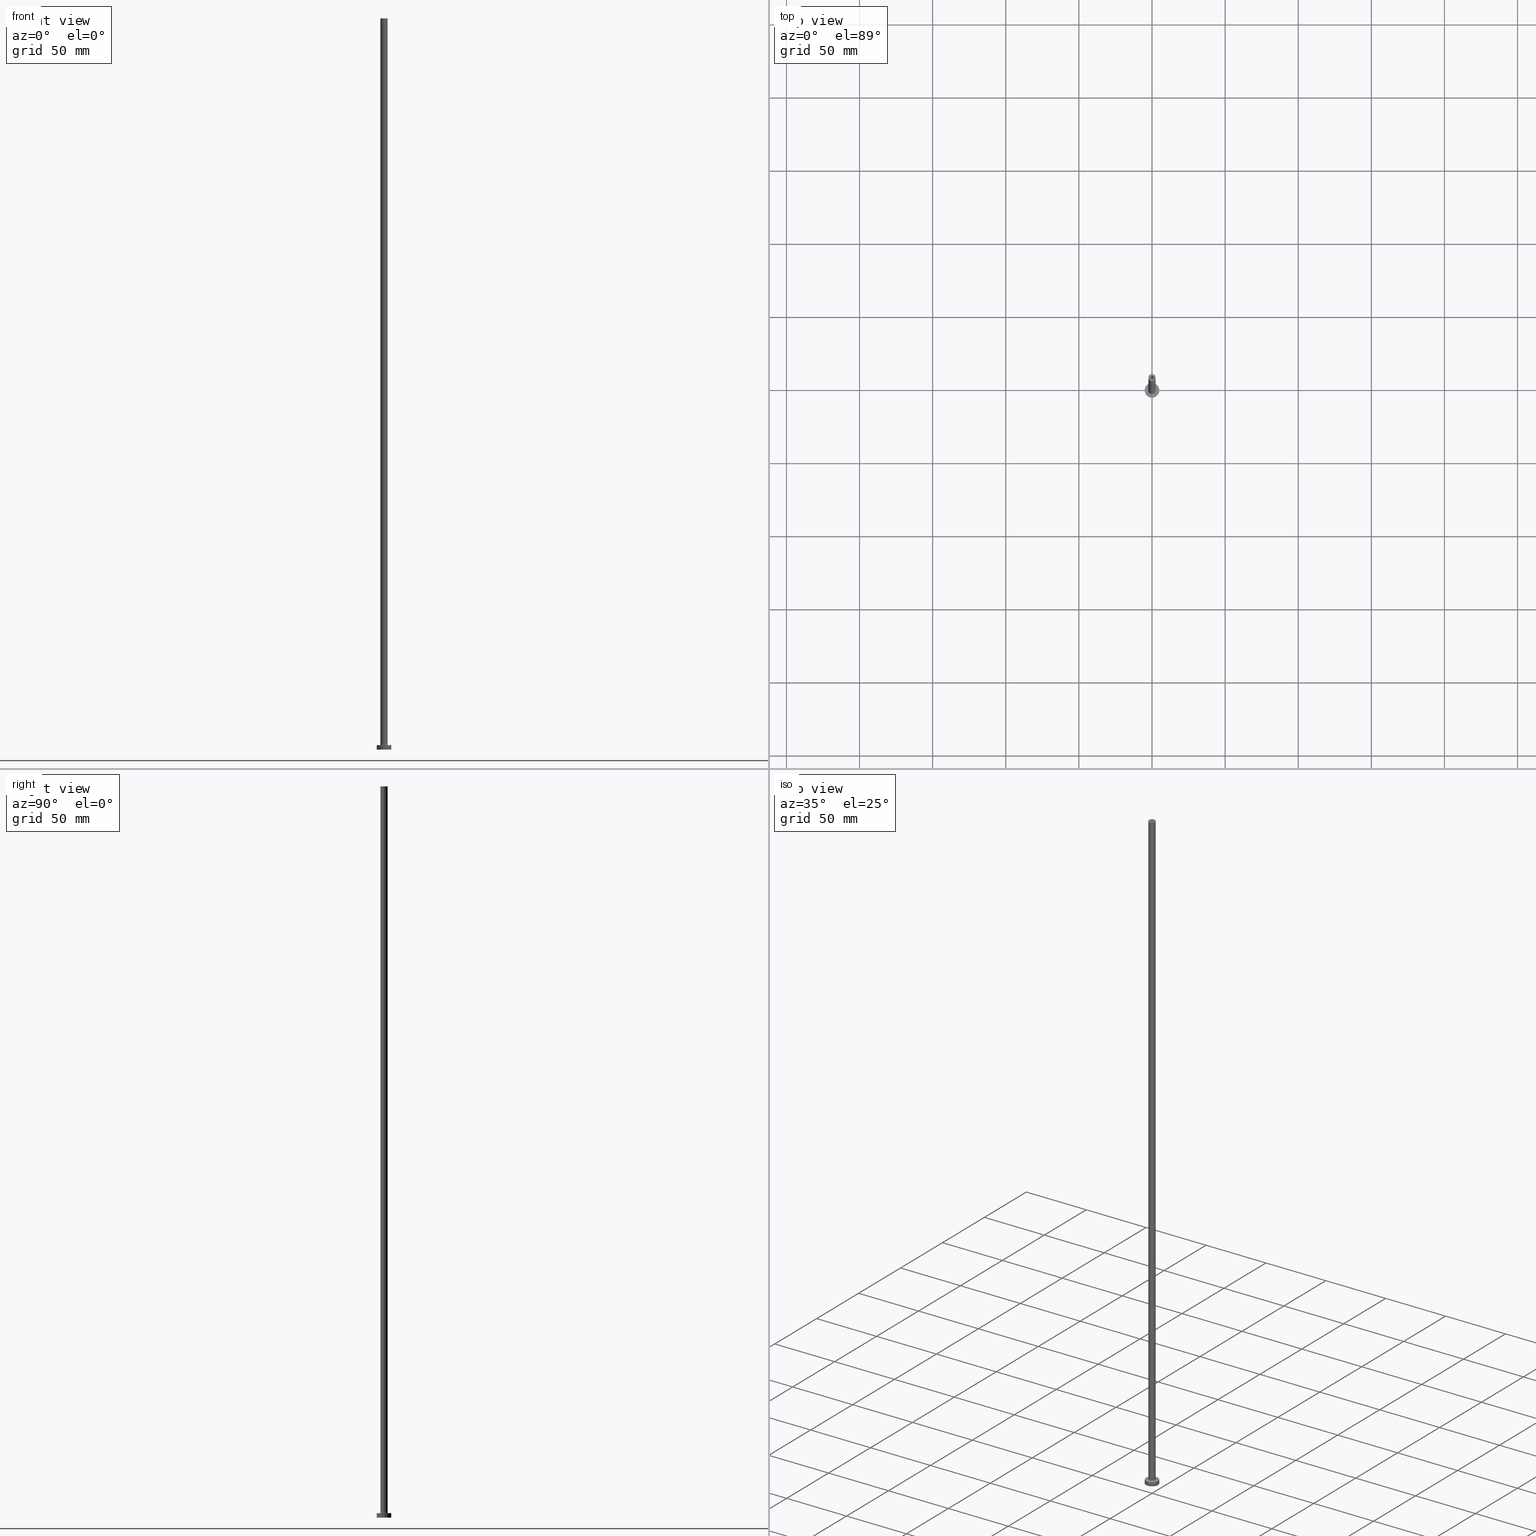
[diagram: canonical four-view strip — front | top / right | iso, engineering-drawing reading convention]
A machine part, canonical four-view strip (front | top / right | iso — engineering-drawing reading convention). The complete STEP part file that produces these views, byte-faithful:
ISO-10303-21;
HEADER;
FILE_DESCRIPTION (( 'STEP AP203' ),
    '1' );
FILE_NAME ('7f8e.STEP',
    '2023-02-13T18:03:27',
    ( '' ),
    ( '' ),
    'SwSTEP 2.0',
    'SolidWorks 2019',
    '' );
FILE_SCHEMA (( 'CONFIG_CONTROL_DESIGN' ));
ENDSEC;

DATA;
#1 = PLANE ( 'NONE',  #320 ) ;
#2 = ORIENTED_EDGE ( 'NONE', *, *, #223, .F. ) ;
#3 = DIRECTION ( 'NONE',  ( 0.000000000000000000, 0.000000000000000000, 1.000000000000000000 ) ) ;
#4 = DIRECTION ( 'NONE',  ( 1.000000000000000000, 0.000000000000000000, 0.000000000000000000 ) ) ;
#5 = CYLINDRICAL_SURFACE ( 'NONE', #167, 1.250000000000000000 ) ;
#6 = CIRCLE ( 'NONE', #34, 1.399999999999999911 ) ;
#7 = DIRECTION ( 'NONE',  ( 1.000000000000000000, 0.000000000000000000, 0.000000000000000000 ) ) ;
#8 = ORIENTED_EDGE ( 'NONE', *, *, #285, .T. ) ;
#9 = CARTESIAN_POINT ( 'NONE',  ( 0.000000000000000000, 0.000000000000000000, 0.000000000000000000 ) ) ;
#10 = EDGE_CURVE ( 'NONE', #125, #184, #11, .T. ) ;
#11 = LINE ( 'NONE', #166, #288 ) ;
#12 = DIRECTION ( 'NONE',  ( -0.000000000000000000, -0.000000000000000000, -1.000000000000000000 ) ) ;
#13 = AXIS2_PLACEMENT_3D ( 'NONE', #53, #59, #412 ) ;
#14 = DATE_AND_TIME ( #345, #290 ) ;
#15 = AXIS2_PLACEMENT_3D ( 'NONE', #322, #28, #256 ) ;
#16 = DIRECTION ( 'NONE',  ( 0.000000000000000000, 0.000000000000000000, -1.000000000000000000 ) ) ;
#17 = EDGE_CURVE ( 'NONE', #184, #90, #176, .T. ) ;
#18 = PERSON_AND_ORGANIZATION ( #262, #431 ) ;
#19 = PLANE ( 'NONE',  #137 ) ;
#20 = COORDINATED_UNIVERSAL_TIME_OFFSET ( 1, 0, .AHEAD. ) ;
#21 = DIRECTION ( 'NONE',  ( -1.000000000000000000, 1.224646799147353207E-16, 0.000000000000000000 ) ) ;
#22 = AXIS2_PLACEMENT_3D ( 'NONE', #298, #3, #430 ) ;
#23 = PERSON_AND_ORGANIZATION ( #262, #431 ) ;
#24 = CARTESIAN_POINT ( 'NONE',  ( -2.500000000000000000, 0.000000000000000000, 500.0000000000000000 ) ) ;
#25 = VECTOR ( 'NONE', #236, 1000.000000000000000 ) ;
#26 = DIRECTION ( 'NONE',  ( 1.000000000000000000, 0.000000000000000000, 0.000000000000000000 ) ) ;
#27 = APPROVAL ( #429, 'NEUR�EN�' ) ;
#28 = DIRECTION ( 'NONE',  ( -0.000000000000000000, -0.000000000000000000, -1.000000000000000000 ) ) ;
#29 = ORIENTED_EDGE ( 'NONE', *, *, #17, .T. ) ;
#30 = PRODUCT_RELATED_PRODUCT_CATEGORY ( 'detail', '', ( #413 ) ) ;
#31 = CIRCLE ( 'NONE', #94, 0.2999999999999999334 ) ;
#32 = DIRECTION ( 'NONE',  ( -0.000000000000000000, -0.000000000000000000, -1.000000000000000000 ) ) ;
#33 = ORIENTED_EDGE ( 'NONE', *, *, #333, .T. ) ;
#34 = AXIS2_PLACEMENT_3D ( 'NONE', #335, #297, #4 ) ;
#35 = ADVANCED_FACE ( 'NONE', ( #130 ), #235, .F. ) ;
#36 = FACE_OUTER_BOUND ( 'NONE', #148, .T. ) ;
#37 = VERTEX_POINT ( 'NONE', #231 ) ;
#38 = CARTESIAN_POINT ( 'NONE',  ( 2.500000000000000000, 3.061616997868382648E-16, 3.300000000000025135 ) ) ;
#39 = EDGE_LOOP ( 'NONE', ( #452, #421, #224, #204 ) ) ;
#40 = CIRCLE ( 'NONE', #102, 5.000000000000000000 ) ;
#41 = CALENDAR_DATE ( 2023, 13, 2 ) ;
#42 = DIRECTION ( 'NONE',  ( 1.000000000000000000, 0.000000000000000000, 0.000000000000000000 ) ) ;
#43 = AXIS2_PLACEMENT_3D ( 'NONE', #349, #180, #221 ) ;
#44 = APPROVAL_DATE_TIME ( #359, #239 ) ;
#45 = ORIENTED_EDGE ( 'NONE', *, *, #174, .F. ) ;
#46 = DIRECTION ( 'NONE',  ( 1.000000000000000000, 0.000000000000000000, -0.000000000000000000 ) ) ;
#47 = FACE_OUTER_BOUND ( 'NONE', #237, .T. ) ;
#48 = DIRECTION ( 'NONE',  ( -1.000000000000000000, 0.000000000000000000, 0.000000000000000000 ) ) ;
#49 = EDGE_CURVE ( 'NONE', #240, #37, #119, .T. ) ;
#50 = CC_DESIGN_APPROVAL ( #239, ( #230 ) ) ;
#51 = CARTESIAN_POINT ( 'NONE',  ( 0.000000000000000000, 0.000000000000000000, 464.9999999999999432 ) ) ;
#52 = CARTESIAN_POINT ( 'NONE',  ( 0.000000000000000000, 0.000000000000000000, 3.000000000000000000 ) ) ;
#53 = CARTESIAN_POINT ( 'NONE',  ( 0.000000000000000000, 0.000000000000000000, 500.0000000000000000 ) ) ;
#54 = DIRECTION ( 'NONE',  ( 1.000000000000000000, 0.000000000000000000, 0.000000000000000000 ) ) ;
#55 = CLOSED_SHELL ( 'NONE', ( #271, #294, #351, #92, #139, #363, #457, #249, #263, #191, #35, #212, #346, #86 ) ) ;
#56 = EDGE_CURVE ( 'NONE', #270, #327, #438, .T. ) ;
#57 = SHAPE_DEFINITION_REPRESENTATION ( #101, #182 ) ;
#58 = AXIS2_PLACEMENT_3D ( 'NONE', #451, #32, #414 ) ;
#59 = DIRECTION ( 'NONE',  ( -0.000000000000000000, -0.000000000000000000, -1.000000000000000000 ) ) ;
#60 = DIRECTION ( 'NONE',  ( 0.000000000000000000, 0.000000000000000000, 1.000000000000000000 ) ) ;
#61 = SECURITY_CLASSIFICATION_LEVEL ( 'unclassified' ) ;
#62 = DIRECTION ( 'NONE',  ( 1.000000000000000000, 0.000000000000000000, 0.000000000000000000 ) ) ;
#63 = CC_DESIGN_DATE_AND_TIME_ASSIGNMENT ( #195, #326, ( #230 ) ) ;
#64 = CARTESIAN_POINT ( 'NONE',  ( 2.500000000000000000, 3.061616997868382648E-16, 500.0000000000000000 ) ) ;
#65 = TOROIDAL_SURFACE ( 'NONE', #210, 2.799999999999999822, 0.2999999999999999889 ) ;
#66 = CC_DESIGN_SECURITY_CLASSIFICATION ( #216, ( #113 ) ) ;
#67 = CARTESIAN_POINT ( 'NONE',  ( -5.000000000000000000, 0.000000000000000000, 3.000000000000000000 ) ) ;
#68 = ORIENTED_EDGE ( 'NONE', *, *, #328, .T. ) ;
#69 = CARTESIAN_POINT ( 'NONE',  ( 1.399999999999999911, 1.714505518806294145E-16, 468.9597979746445731 ) ) ;
#70 = ORIENTED_EDGE ( 'NONE', *, *, #300, .F. ) ;
#71 = EDGE_CURVE ( 'NONE', #356, #281, #40, .T. ) ;
#72 = DIRECTION ( 'NONE',  ( 1.000000000000000000, 0.000000000000000000, -0.000000000000000000 ) ) ;
#73 = ORIENTED_EDGE ( 'NONE', *, *, #71, .F. ) ;
#74 = CIRCLE ( 'NONE', #248, 2.500000000000000000 ) ;
#75 = FACE_OUTER_BOUND ( 'NONE', #450, .T. ) ;
#76 = EDGE_LOOP ( 'NONE', ( #336, #315, #350, #302 ) ) ;
#77 = PERSON_AND_ORGANIZATION ( #262, #431 ) ;
#78 = EDGE_LOOP ( 'NONE', ( #419, #150 ) ) ;
#79 = CC_DESIGN_PERSON_AND_ORGANIZATION_ASSIGNMENT ( #343, #377, ( #113 ) ) ;
#80 = PERSON_AND_ORGANIZATION ( #262, #431 ) ;
#81 = ORIENTED_EDGE ( 'NONE', *, *, #396, .T. ) ;
#82 = VECTOR ( 'NONE', #108, 1000.000000000000000 ) ;
#83 = COORDINATED_UNIVERSAL_TIME_OFFSET ( 1, 0, .AHEAD. ) ;
#84 = ORIENTED_EDGE ( 'NONE', *, *, #390, .F. ) ;
#85 = CARTESIAN_POINT ( 'NONE',  ( 0.000000000000000000, 0.000000000000000000, 500.0000000000000000 ) ) ;
#86 = ADVANCED_FACE ( 'NONE', ( #47 ), #5, .F. ) ;
#87 = ORIENTED_EDGE ( 'NONE', *, *, #169, .F. ) ;
#88 = CIRCLE ( 'NONE', #162, 2.799999999999999822 ) ;
#89 = DATE_AND_TIME ( #134, #131 ) ;
#90 = VERTEX_POINT ( 'NONE', #201 ) ;
#91 = DIRECTION ( 'NONE',  ( -0.000000000000000000, -0.000000000000000000, -1.000000000000000000 ) ) ;
#92 = ADVANCED_FACE ( 'NONE', ( #411 ), #211, .T. ) ;
#93 = DIRECTION ( 'NONE',  ( 0.000000000000000000, 0.000000000000000000, 1.000000000000000000 ) ) ;
#94 = AXIS2_PLACEMENT_3D ( 'NONE', #274, #308, #21 ) ;
#95 = AXIS2_PLACEMENT_3D ( 'NONE', #379, #286, #111 ) ;
#96 = CARTESIAN_POINT ( 'NONE',  ( 5.000000000000000000, 6.123233995736766282E-16, 3.000000000000000000 ) ) ;
#97 = PERSON_AND_ORGANIZATION_ROLE ( 'design_supplier' ) ;
#98 = DIRECTION ( 'NONE',  ( 1.000000000000000000, 0.000000000000000000, 0.000000000000000000 ) ) ;
#99 = EDGE_CURVE ( 'NONE', #389, #106, #227, .T. ) ;
#100 = CARTESIAN_POINT ( 'NONE',  ( -1.399999999999999911, 0.000000000000000000, 0.000000000000000000 ) ) ;
#101 = PRODUCT_DEFINITION_SHAPE ( 'NONE', 'NONE',  #230 ) ;
#102 = AXIS2_PLACEMENT_3D ( 'NONE', #52, #158, #362 ) ;
#103 = AXIS2_PLACEMENT_3D ( 'NONE', #135, #136, #408 ) ;
#104 = CARTESIAN_POINT ( 'NONE',  ( 0.000000000000000000, 0.000000000000000000, 3.000000000000000000 ) ) ;
#105 = VECTOR ( 'NONE', #382, 1000.000000000000000 ) ;
#106 = VERTEX_POINT ( 'NONE', #344 ) ;
#107 = EDGE_CURVE ( 'NONE', #146, #222, #31, .T. ) ;
#108 = DIRECTION ( 'NONE',  ( -0.000000000000000000, -0.000000000000000000, -1.000000000000000000 ) ) ;
#109 = ORIENTED_EDGE ( 'NONE', *, *, #133, .F. ) ;
#110 = LINE ( 'NONE', #218, #82 ) ;
#111 = DIRECTION ( 'NONE',  ( -1.000000000000000000, 0.000000000000000000, 0.000000000000000000 ) ) ;
#112 = AXIS2_PLACEMENT_3D ( 'NONE', #140, #60, #98 ) ;
#113 = PRODUCT_DEFINITION_FORMATION_WITH_SPECIFIED_SOURCE ( 'LIBOVOLN�', '', #413, .NOT_KNOWN. ) ;
#114 = AXIS2_PLACEMENT_3D ( 'NONE', #458, #348, #149 ) ;
#115 = ORIENTED_EDGE ( 'NONE', *, *, #159, .T. ) ;
#116 = EDGE_CURVE ( 'NONE', #161, #146, #372, .T. ) ;
#117 = APPLICATION_CONTEXT ( 'configuration controlled 3d designs of mechanical parts and assemblies' ) ;
#118 = CARTESIAN_POINT ( 'NONE',  ( 0.000000000000000000, 0.000000000000000000, 0.000000000000000000 ) ) ;
#119 = CIRCLE ( 'NONE', #373, 1.250000000000000000 ) ;
#120 = CARTESIAN_POINT ( 'NONE',  ( 0.000000000000000000, 0.000000000000000000, 0.000000000000000000 ) ) ;
#121 = ORIENTED_EDGE ( 'NONE', *, *, #206, .T. ) ;
#122 = UNCERTAINTY_MEASURE_WITH_UNIT (LENGTH_MEASURE( 1.000000000000000082E-05 ), #267, 'distance_accuracy_value', 'NONE');
#123 = APPROVAL_PERSON_ORGANIZATION ( #77, #239, #399 ) ;
#124 = FACE_BOUND ( 'NONE', #318, .T. ) ;
#125 = VERTEX_POINT ( 'NONE', #312 ) ;
#126 = APPLICATION_PROTOCOL_DEFINITION ( 'international standard', 'config_control_design', 1994, #117 ) ;
#127 = VERTEX_POINT ( 'NONE', #303 ) ;
#128 = CC_DESIGN_DATE_AND_TIME_ASSIGNMENT ( #173, #401, ( #216 ) ) ;
#129 = APPROVAL_DATE_TIME ( #89, #27 ) ;
#130 = FACE_OUTER_BOUND ( 'NONE', #39, .T. ) ;
#131 = LOCAL_TIME ( 19, 3, 27.00000000000000000, #341 ) ;
#132 = CYLINDRICAL_SURFACE ( 'NONE', #440, 1.399999999999999911 ) ;
#133 = EDGE_CURVE ( 'NONE', #37, #240, #229, .T. ) ;
#134 = CALENDAR_DATE ( 2023, 13, 2 ) ;
#135 = CARTESIAN_POINT ( 'NONE',  ( 0.000000000000000000, 0.000000000000000000, 464.9999999999999432 ) ) ;
#136 = DIRECTION ( 'NONE',  ( 0.000000000000000000, 0.000000000000000000, 1.000000000000000000 ) ) ;
#137 = AXIS2_PLACEMENT_3D ( 'NONE', #352, #250, #72 ) ;
#138 = CARTESIAN_POINT ( 'NONE',  ( 0.000000000000000000, 0.000000000000000000, 0.000000000000000000 ) ) ;
#139 = ADVANCED_FACE ( 'NONE', ( #207 ), #241, .T. ) ;
#140 = CARTESIAN_POINT ( 'NONE',  ( 0.000000000000000000, 0.000000000000000000, 500.0000000000000000 ) ) ;
#141 = DIRECTION ( 'NONE',  ( 0.000000000000000000, 0.000000000000000000, -1.000000000000000000 ) ) ;
#142 = ORIENTED_EDGE ( 'NONE', *, *, #371, .F. ) ;
#143 = APPLICATION_CONTEXT ( 'configuration controlled 3d designs of mechanical parts and assemblies' ) ;
#144 = DIRECTION ( 'NONE',  ( 0.000000000000000000, 0.000000000000000000, 1.000000000000000000 ) ) ;
#145 = AXIS2_PLACEMENT_3D ( 'NONE', #183, #321, #141 ) ;
#146 = VERTEX_POINT ( 'NONE', #445 ) ;
#147 = FACE_OUTER_BOUND ( 'NONE', #289, .T. ) ;
#148 = EDGE_LOOP ( 'NONE', ( #284, #251, #461, #459 ) ) ;
#149 = DIRECTION ( 'NONE',  ( 1.000000000000000000, 0.000000000000000000, -0.000000000000000000 ) ) ;
#150 = ORIENTED_EDGE ( 'NONE', *, *, #444, .F. ) ;
#151 = DIRECTION ( 'NONE',  ( 0.000000000000000000, 0.000000000000000000, 1.000000000000000000 ) ) ;
#152 = EDGE_LOOP ( 'NONE', ( #383, #109 ) ) ;
#153 = VECTOR ( 'NONE', #420, 1000.000000000000000 ) ;
#154 = CC_DESIGN_PERSON_AND_ORGANIZATION_ASSIGNMENT ( #157, #329, ( #230 ) ) ;
#155 = CARTESIAN_POINT ( 'NONE',  ( 1.250000000000000000, 1.530808498934191571E-16, 500.0000000000000000 ) ) ;
#156 = DIRECTION ( 'NONE',  ( 0.000000000000000000, 0.000000000000000000, -1.000000000000000000 ) ) ;
#157 = PERSON_AND_ORGANIZATION ( #262, #431 ) ;
#158 = DIRECTION ( 'NONE',  ( 0.000000000000000000, 0.000000000000000000, 1.000000000000000000 ) ) ;
#159 = EDGE_CURVE ( 'NONE', #106, #389, #196, .T. ) ;
#160 = CARTESIAN_POINT ( 'NONE',  ( 0.000000000000000000, 0.000000000000000000, 3.000000000000000000 ) ) ;
#161 = VERTEX_POINT ( 'NONE', #24 ) ;
#162 = AXIS2_PLACEMENT_3D ( 'NONE', #337, #91, #448 ) ;
#163 = DIRECTION ( 'NONE',  ( 0.000000000000000000, 0.000000000000000000, 1.000000000000000000 ) ) ;
#164 = ORIENTED_EDGE ( 'NONE', *, *, #396, .F. ) ;
#165 = DIRECTION ( 'NONE',  ( 0.000000000000000000, 0.000000000000000000, 1.000000000000000000 ) ) ;
#166 = CARTESIAN_POINT ( 'NONE',  ( -1.399999999999999911, 0.000000000000000000, 468.9597979746445731 ) ) ;
#167 = AXIS2_PLACEMENT_3D ( 'NONE', #234, #365, #48 ) ;
#168 = FACE_OUTER_BOUND ( 'NONE', #292, .T. ) ;
#169 = EDGE_CURVE ( 'NONE', #327, #270, #439, .T. ) ;
#170 = CIRCLE ( 'NONE', #202, 1.399999999999999911 ) ;
#171 = DIRECTION ( 'NONE',  ( -1.000000000000000000, 0.000000000000000000, 0.000000000000000000 ) ) ;
#172 = APPROVAL_ROLE ( '' ) ;
#173 = DATE_AND_TIME ( #205, #425 ) ;
#174 = EDGE_CURVE ( 'NONE', #356, #389, #370, .T. ) ;
#175 = CARTESIAN_POINT ( 'NONE',  ( 0.000000000000000000, 0.000000000000000000, 0.000000000000000000 ) ) ;
#176 = CIRCLE ( 'NONE', #316, 1.399999999999999911 ) ;
#177 = AXIS2_PLACEMENT_3D ( 'NONE', #175, #405, #446 ) ;
#178 = CC_DESIGN_APPROVAL ( #27, ( #113 ) ) ;
#179 = DIRECTION ( 'NONE',  ( 1.000000000000000000, 0.000000000000000000, -0.000000000000000000 ) ) ;
#180 = DIRECTION ( 'NONE',  ( 0.000000000000000000, 0.000000000000000000, -1.000000000000000000 ) ) ;
#181 = ORIENTED_EDGE ( 'NONE', *, *, #17, .F. ) ;
#182 = ADVANCED_BREP_SHAPE_REPRESENTATION ( '7f8e', ( #380, #447 ), #410 ) ;
#183 = CARTESIAN_POINT ( 'NONE',  ( 2.799999999999999822, 0.000000000000000000, 3.300000000000025135 ) ) ;
#184 = VERTEX_POINT ( 'NONE', #100 ) ;
#185 = EDGE_CURVE ( 'NONE', #272, #146, #198, .T. ) ;
#186 = CYLINDRICAL_SURFACE ( 'NONE', #43, 1.399999999999999911 ) ;
#187 = AXIS2_PLACEMENT_3D ( 'NONE', #441, #378, #62 ) ;
#188 = VERTEX_POINT ( 'NONE', #245 ) ;
#189 = LINE ( 'NONE', #455, #105 ) ;
#190 = ORIENTED_EDGE ( 'NONE', *, *, #409, .F. ) ;
#191 = ADVANCED_FACE ( 'NONE', ( #209, #215 ), #347, .T. ) ;
#192 = FACE_BOUND ( 'NONE', #456, .T. ) ;
#193 = ORIENTED_EDGE ( 'NONE', *, *, #371, .T. ) ;
#194 = AXIS2_PLACEMENT_3D ( 'NONE', #265, #433, #197 ) ;
#195 = DATE_AND_TIME ( #41, #310 ) ;
#196 = CIRCLE ( 'NONE', #177, 5.000000000000000000 ) ;
#197 = DIRECTION ( 'NONE',  ( 1.000000000000000000, 0.000000000000000000, 0.000000000000000000 ) ) ;
#198 = CIRCLE ( 'NONE', #187, 2.500000000000000000 ) ;
#199 = DIRECTION ( 'NONE',  ( 0.000000000000000000, 0.000000000000000000, 1.000000000000000000 ) ) ;
#200 = EDGE_LOOP ( 'NONE', ( #164, #33, #323, #293 ) ) ;
#201 = CARTESIAN_POINT ( 'NONE',  ( 1.399999999999999911, 1.714505518806294145E-16, 0.000000000000000000 ) ) ;
#202 = AXIS2_PLACEMENT_3D ( 'NONE', #120, #432, #203 ) ;
#203 = DIRECTION ( 'NONE',  ( 1.000000000000000000, 0.000000000000000000, 0.000000000000000000 ) ) ;
#204 = ORIENTED_EDGE ( 'NONE', *, *, #206, .F. ) ;
#205 = CALENDAR_DATE ( 2023, 13, 2 ) ;
#206 = EDGE_CURVE ( 'NONE', #222, #188, #88, .T. ) ;
#207 = FACE_OUTER_BOUND ( 'NONE', #258, .T. ) ;
#208 = APPROVAL_STATUS ( 'not_yet_approved' ) ;
#209 = FACE_BOUND ( 'NONE', #152, .T. ) ;
#210 = AXIS2_PLACEMENT_3D ( 'NONE', #280, #317, #26 ) ;
#211 = CYLINDRICAL_SURFACE ( 'NONE', #13, 2.500000000000000000 ) ;
#212 = ADVANCED_FACE ( 'NONE', ( #168 ), #132, .F. ) ;
#213 = DIRECTION ( 'NONE',  ( 0.000000000000000000, 0.000000000000000000, 1.000000000000000000 ) ) ;
#214 = PERSON_AND_ORGANIZATION_ROLE ( 'classification_officer' ) ;
#215 = FACE_OUTER_BOUND ( 'NONE', #360, .T. ) ;
#216 = SECURITY_CLASSIFICATION ( '', '', #61 ) ;
#217 = FACE_OUTER_BOUND ( 'NONE', #78, .T. ) ;
#218 = CARTESIAN_POINT ( 'NONE',  ( -5.000000000000000000, 0.000000000000000000, 3.000000000000000000 ) ) ;
#219 = DIRECTION ( 'NONE',  ( 0.000000000000000000, 0.000000000000000000, -1.000000000000000000 ) ) ;
#220 = ORIENTED_EDGE ( 'NONE', *, *, #99, .T. ) ;
#221 = DIRECTION ( 'NONE',  ( -1.000000000000000000, 0.000000000000000000, 0.000000000000000000 ) ) ;
#222 = VERTEX_POINT ( 'NONE', #276 ) ;
#223 = EDGE_CURVE ( 'NONE', #161, #392, #282, .T. ) ;
#224 = ORIENTED_EDGE ( 'NONE', *, *, #300, .T. ) ;
#225 = APPROVAL_STATUS ( 'not_yet_approved' ) ;
#226 = ORIENTED_EDGE ( 'NONE', *, *, #285, .F. ) ;
#227 = CIRCLE ( 'NONE', #242, 5.000000000000000000 ) ;
#228 = PERSON_AND_ORGANIZATION_ROLE ( 'design_owner' ) ;
#229 = CIRCLE ( 'NONE', #112, 1.250000000000000000 ) ;
#230 = PRODUCT_DEFINITION ( 'NEZN�M�', '', #113, #406 ) ;
#231 = CARTESIAN_POINT ( 'NONE',  ( 1.250000000000000000, 1.530808498934191571E-16, 500.0000000000000000 ) ) ;
#232 = DIRECTION ( 'NONE',  ( 1.000000000000000000, 0.000000000000000000, 0.000000000000000000 ) ) ;
#233 =( NAMED_UNIT ( * ) SI_UNIT ( $, .STERADIAN. ) SOLID_ANGLE_UNIT ( ) );
#234 = CARTESIAN_POINT ( 'NONE',  ( 0.000000000000000000, 0.000000000000000000, 500.0000000000000000 ) ) ;
#235 = TOROIDAL_SURFACE ( 'NONE', #194, 2.799999999999999822, 0.2999999999999999889 ) ;
#236 = DIRECTION ( 'NONE',  ( 0.000000000000000000, 0.000000000000000000, -1.000000000000000000 ) ) ;
#237 = EDGE_LOOP ( 'NONE', ( #261, #400, #435, #87 ) ) ;
#238 = APPROVAL_PERSON_ORGANIZATION ( #23, #454, #275 ) ;
#239 = APPROVAL ( #225, 'NEUR�EN�' ) ;
#240 = VERTEX_POINT ( 'NONE', #307 ) ;
#241 = CYLINDRICAL_SURFACE ( 'NONE', #366, 5.000000000000000000 ) ;
#242 = AXIS2_PLACEMENT_3D ( 'NONE', #138, #376, #54 ) ;
#243 = DIRECTION ( 'NONE',  ( 1.000000000000000000, 0.000000000000000000, 0.000000000000000000 ) ) ;
#244 = AXIS2_PLACEMENT_3D ( 'NONE', #279, #213, #179 ) ;
#245 = CARTESIAN_POINT ( 'NONE',  ( 2.799999999999999822, 0.000000000000000000, 3.000000000000012434 ) ) ;
#246 = DIRECTION ( 'NONE',  ( -1.000000000000000000, 0.000000000000000000, 0.000000000000000000 ) ) ;
#247 = CARTESIAN_POINT ( 'NONE',  ( -1.250000000000000000, 0.000000000000000000, 464.9999999999999432 ) ) ;
#248 = AXIS2_PLACEMENT_3D ( 'NONE', #367, #364, #427 ) ;
#249 = ADVANCED_FACE ( 'NONE', ( #374, #342 ), #19, .F. ) ;
#250 = DIRECTION ( 'NONE',  ( 0.000000000000000000, 0.000000000000000000, 1.000000000000000000 ) ) ;
#251 = ORIENTED_EDGE ( 'NONE', *, *, #417, .T. ) ;
#252 = CARTESIAN_POINT ( 'NONE',  ( 5.000000000000000000, 6.123233995736766282E-16, 0.000000000000000000 ) ) ;
#253 = ORIENTED_EDGE ( 'NONE', *, *, #99, .F. ) ;
#254 = CARTESIAN_POINT ( 'NONE',  ( 0.000000000000000000, 0.000000000000000000, 500.0000000000000000 ) ) ;
#255 = EDGE_CURVE ( 'NONE', #240, #270, #189, .T. ) ;
#256 = DIRECTION ( 'NONE',  ( 1.000000000000000000, 0.000000000000000000, 0.000000000000000000 ) ) ;
#257 = AXIS2_PLACEMENT_3D ( 'NONE', #104, #144, #418 ) ;
#258 = EDGE_LOOP ( 'NONE', ( #73, #330, #220, #226 ) ) ;
#259 = DIRECTION ( 'NONE',  ( 1.000000000000000000, 0.000000000000000000, 0.000000000000000000 ) ) ;
#260 = ORIENTED_EDGE ( 'NONE', *, *, #56, .T. ) ;
#261 = ORIENTED_EDGE ( 'NONE', *, *, #417, .F. ) ;
#262 = PERSON ( 'NEUR�EN�', 'NEUR�EN�', 'NEUR�EN�', ('NEUR�EN�'), ('NEUR�EN�'), ('NEUR�EN�') ) ;
#263 = ADVANCED_FACE ( 'NONE', ( #147 ), #324, .T. ) ;
#264 = LINE ( 'NONE', #155, #25 ) ;
#265 = CARTESIAN_POINT ( 'NONE',  ( 0.000000000000000000, 0.000000000000000000, 3.300000000000025135 ) ) ;
#266 = AXIS2_PLACEMENT_3D ( 'NONE', #51, #163, #7 ) ;
#267 =( LENGTH_UNIT ( ) NAMED_UNIT ( * ) SI_UNIT ( .MILLI., .METRE. ) );
#268 = ORIENTED_EDGE ( 'NONE', *, *, #340, .T. ) ;
#269 = APPLICATION_PROTOCOL_DEFINITION ( 'international standard', 'config_control_design', 1994, #143 ) ;
#270 = VERTEX_POINT ( 'NONE', #247 ) ;
#271 = ADVANCED_FACE ( 'NONE', ( #36 ), #460, .F. ) ;
#272 = VERTEX_POINT ( 'NONE', #38 ) ;
#273 = CIRCLE ( 'NONE', #402, 2.500000000000000000 ) ;
#274 = CARTESIAN_POINT ( 'NONE',  ( -2.799999999999999822, 3.429011037612588783E-16, 3.300000000000025135 ) ) ;
#275 = APPROVAL_ROLE ( '' ) ;
#276 = CARTESIAN_POINT ( 'NONE',  ( -2.799999999999999822, 3.429011037612589276E-16, 3.000000000000012434 ) ) ;
#277 = DIRECTION ( 'NONE',  ( -0.000000000000000000, -0.000000000000000000, -1.000000000000000000 ) ) ;
#278 = DIRECTION ( 'NONE',  ( -0.000000000000000000, -0.000000000000000000, -1.000000000000000000 ) ) ;
#279 = CARTESIAN_POINT ( 'NONE',  ( 0.000000000000000000, 0.000000000000000000, 500.0000000000000000 ) ) ;
#280 = CARTESIAN_POINT ( 'NONE',  ( 0.000000000000000000, 0.000000000000000000, 3.300000000000025135 ) ) ;
#281 = VERTEX_POINT ( 'NONE', #67 ) ;
#282 = CIRCLE ( 'NONE', #304, 2.500000000000000000 ) ;
#283 = CARTESIAN_POINT ( 'NONE',  ( 1.250000000000000000, 1.530808498934191571E-16, 464.9999999999999432 ) ) ;
#284 = ORIENTED_EDGE ( 'NONE', *, *, #49, .T. ) ;
#285 = EDGE_CURVE ( 'NONE', #281, #106, #110, .T. ) ;
#286 = DIRECTION ( 'NONE',  ( -0.000000000000000000, -0.000000000000000000, -1.000000000000000000 ) ) ;
#287 = DIRECTION ( 'NONE',  ( 0.000000000000000000, 0.000000000000000000, -1.000000000000000000 ) ) ;
#288 = VECTOR ( 'NONE', #156, 1000.000000000000000 ) ;
#289 = EDGE_LOOP ( 'NONE', ( #393, #2, #334, #68 ) ) ;
#290 = LOCAL_TIME ( 19, 3, 27.00000000000000000, #306 ) ;
#291 = LINE ( 'NONE', #64, #153 ) ;
#292 = EDGE_LOOP ( 'NONE', ( #84, #386, #296, #29 ) ) ;
#293 = ORIENTED_EDGE ( 'NONE', *, *, #116, .F. ) ;
#294 = ADVANCED_FACE ( 'NONE', ( #385 ), #186, .F. ) ;
#295 = PERSON_AND_ORGANIZATION ( #262, #431 ) ;
#296 = ORIENTED_EDGE ( 'NONE', *, *, #10, .T. ) ;
#297 = DIRECTION ( 'NONE',  ( 0.000000000000000000, 0.000000000000000000, 1.000000000000000000 ) ) ;
#298 = CARTESIAN_POINT ( 'NONE',  ( 0.000000000000000000, 0.000000000000000000, 464.9999999999999432 ) ) ;
#299 = LOCAL_TIME ( 19, 3, 27.00000000000000000, #83 ) ;
#300 = EDGE_CURVE ( 'NONE', #272, #188, #339, .T. ) ;
#301 = ORIENTED_EDGE ( 'NONE', *, *, #340, .F. ) ;
#302 = ORIENTED_EDGE ( 'NONE', *, *, #10, .F. ) ;
#303 = CARTESIAN_POINT ( 'NONE',  ( 1.399999999999999911, 1.714505518806294145E-16, 464.9999999999999432 ) ) ;
#304 = AXIS2_PLACEMENT_3D ( 'NONE', #407, #93, #243 ) ;
#305 = CARTESIAN_POINT ( 'NONE',  ( -2.500000000000000000, 0.000000000000000000, 500.0000000000000000 ) ) ;
#306 = COORDINATED_UNIVERSAL_TIME_OFFSET ( 1, 0, .AHEAD. ) ;
#307 = CARTESIAN_POINT ( 'NONE',  ( -1.250000000000000000, 0.000000000000000000, 500.0000000000000000 ) ) ;
#308 = DIRECTION ( 'NONE',  ( 1.224646799147353207E-16, 1.000000000000000000, -0.000000000000000000 ) ) ;
#309 = VECTOR ( 'NONE', #277, 1000.000000000000000 ) ;
#310 = LOCAL_TIME ( 19, 3, 27.00000000000000000, #357 ) ;
#311 = CIRCLE ( 'NONE', #266, 1.399999999999999911 ) ;
#312 = CARTESIAN_POINT ( 'NONE',  ( -1.399999999999999911, 0.000000000000000000, 464.9999999999999432 ) ) ;
#313 = CC_DESIGN_PERSON_AND_ORGANIZATION_ASSIGNMENT ( #80, #228, ( #413 ) ) ;
#314 = FACE_OUTER_BOUND ( 'NONE', #325, .T. ) ;
#315 = ORIENTED_EDGE ( 'NONE', *, *, #390, .T. ) ;
#316 = AXIS2_PLACEMENT_3D ( 'NONE', #118, #437, #42 ) ;
#317 = DIRECTION ( 'NONE',  ( 0.000000000000000000, 0.000000000000000000, 1.000000000000000000 ) ) ;
#318 = EDGE_LOOP ( 'NONE', ( #268, #121 ) ) ;
#319 = CC_DESIGN_PERSON_AND_ORGANIZATION_ASSIGNMENT ( #442, #97, ( #113 ) ) ;
#320 = AXIS2_PLACEMENT_3D ( 'NONE', #160, #165, #46 ) ;
#321 = DIRECTION ( 'NONE',  ( 0.000000000000000000, -1.000000000000000000, 0.000000000000000000 ) ) ;
#322 = CARTESIAN_POINT ( 'NONE',  ( 0.000000000000000000, 0.000000000000000000, 3.000000000000000000 ) ) ;
#323 = ORIENTED_EDGE ( 'NONE', *, *, #185, .T. ) ;
#324 = CYLINDRICAL_SURFACE ( 'NONE', #95, 2.500000000000000000 ) ;
#325 = EDGE_LOOP ( 'NONE', ( #45, #142, #8, #115 ) ) ;
#326 = DATE_TIME_ROLE ( 'creation_date' ) ;
#327 = VERTEX_POINT ( 'NONE', #283 ) ;
#328 = EDGE_CURVE ( 'NONE', #146, #272, #273, .T. ) ;
#329 = PERSON_AND_ORGANIZATION_ROLE ( 'creator' ) ;
#330 = ORIENTED_EDGE ( 'NONE', *, *, #174, .T. ) ;
#331 = CARTESIAN_POINT ( 'NONE',  ( 2.500000000000000000, 3.061616997868382648E-16, 500.0000000000000000 ) ) ;
#332 = EDGE_LOOP ( 'NONE', ( #353, #253 ) ) ;
#333 = EDGE_CURVE ( 'NONE', #392, #272, #291, .T. ) ;
#334 = ORIENTED_EDGE ( 'NONE', *, *, #116, .T. ) ;
#335 = CARTESIAN_POINT ( 'NONE',  ( 0.000000000000000000, 0.000000000000000000, 464.9999999999999432 ) ) ;
#336 = ORIENTED_EDGE ( 'NONE', *, *, #424, .T. ) ;
#337 = CARTESIAN_POINT ( 'NONE',  ( 0.000000000000000000, 0.000000000000000000, 3.000000000000000000 ) ) ;
#338 = CARTESIAN_POINT ( 'NONE',  ( 0.000000000000000000, 0.000000000000000000, 468.9597979746445731 ) ) ;
#339 = CIRCLE ( 'NONE', #145, 0.2999999999999999334 ) ;
#340 = EDGE_CURVE ( 'NONE', #188, #222, #394, .T. ) ;
#341 = COORDINATED_UNIVERSAL_TIME_OFFSET ( 1, 0, .AHEAD. ) ;
#342 = FACE_OUTER_BOUND ( 'NONE', #332, .T. ) ;
#343 = PERSON_AND_ORGANIZATION ( #262, #431 ) ;
#344 = CARTESIAN_POINT ( 'NONE',  ( -5.000000000000000000, 0.000000000000000000, 0.000000000000000000 ) ) ;
#345 = CALENDAR_DATE ( 2023, 13, 2 ) ;
#346 = ADVANCED_FACE ( 'NONE', ( #192, #217 ), #388, .F. ) ;
#347 = PLANE ( 'NONE',  #244 ) ;
#348 = DIRECTION ( 'NONE',  ( 0.000000000000000000, 0.000000000000000000, 1.000000000000000000 ) ) ;
#349 = CARTESIAN_POINT ( 'NONE',  ( 0.000000000000000000, 0.000000000000000000, 468.9597979746445731 ) ) ;
#350 = ORIENTED_EDGE ( 'NONE', *, *, #409, .T. ) ;
#351 = ADVANCED_FACE ( 'NONE', ( #75 ), #65, .F. ) ;
#352 = CARTESIAN_POINT ( 'NONE',  ( 0.000000000000000000, 0.000000000000000000, 0.000000000000000000 ) ) ;
#353 = ORIENTED_EDGE ( 'NONE', *, *, #159, .F. ) ;
#354 = DIRECTION ( 'NONE',  ( 1.000000000000000000, 0.000000000000000000, 0.000000000000000000 ) ) ;
#355 = CARTESIAN_POINT ( 'NONE',  ( 5.000000000000000000, 6.123233995736766282E-16, 3.000000000000000000 ) ) ;
#356 = VERTEX_POINT ( 'NONE', #355 ) ;
#357 = COORDINATED_UNIVERSAL_TIME_OFFSET ( 1, 0, .AHEAD. ) ;
#358 = ORIENTED_EDGE ( 'NONE', *, *, #169, .T. ) ;
#359 = DATE_AND_TIME ( #361, #299 ) ;
#360 = EDGE_LOOP ( 'NONE', ( #397, #81 ) ) ;
#361 = CALENDAR_DATE ( 2023, 13, 2 ) ;
#362 = DIRECTION ( 'NONE',  ( 1.000000000000000000, 0.000000000000000000, 0.000000000000000000 ) ) ;
#363 = ADVANCED_FACE ( 'NONE', ( #314 ), #449, .T. ) ;
#364 = DIRECTION ( 'NONE',  ( 0.000000000000000000, 0.000000000000000000, 1.000000000000000000 ) ) ;
#365 = DIRECTION ( 'NONE',  ( 0.000000000000000000, 0.000000000000000000, -1.000000000000000000 ) ) ;
#366 = AXIS2_PLACEMENT_3D ( 'NONE', #443, #278, #246 ) ;
#367 = CARTESIAN_POINT ( 'NONE',  ( 0.000000000000000000, 0.000000000000000000, 500.0000000000000000 ) ) ;
#368 = APPROVAL_PERSON_ORGANIZATION ( #295, #27, #172 ) ;
#369 = EDGE_LOOP ( 'NONE', ( #193, #403 ) ) ;
#370 = LINE ( 'NONE', #96, #416 ) ;
#371 = EDGE_CURVE ( 'NONE', #281, #356, #453, .T. ) ;
#372 = LINE ( 'NONE', #305, #309 ) ;
#373 = AXIS2_PLACEMENT_3D ( 'NONE', #85, #199, #232 ) ;
#374 = FACE_BOUND ( 'NONE', #415, .T. ) ;
#375 = VECTOR ( 'NONE', #219, 1000.000000000000000 ) ;
#376 = DIRECTION ( 'NONE',  ( 0.000000000000000000, 0.000000000000000000, 1.000000000000000000 ) ) ;
#377 = PERSON_AND_ORGANIZATION_ROLE ( 'creator' ) ;
#378 = DIRECTION ( 'NONE',  ( 0.000000000000000000, 0.000000000000000000, 1.000000000000000000 ) ) ;
#379 = CARTESIAN_POINT ( 'NONE',  ( 0.000000000000000000, 0.000000000000000000, 500.0000000000000000 ) ) ;
#380 = MANIFOLD_SOLID_BREP ( 'Odebrat vysunut�m4', #55 ) ;
#381 = CC_DESIGN_APPROVAL ( #454, ( #216 ) ) ;
#382 = DIRECTION ( 'NONE',  ( 0.000000000000000000, 0.000000000000000000, -1.000000000000000000 ) ) ;
#383 = ORIENTED_EDGE ( 'NONE', *, *, #49, .F. ) ;
#384 = LINE ( 'NONE', #69, #375 ) ;
#385 = FACE_OUTER_BOUND ( 'NONE', #76, .T. ) ;
#386 = ORIENTED_EDGE ( 'NONE', *, *, #444, .T. ) ;
#387 = AXIS2_PLACEMENT_3D ( 'NONE', #254, #287, #422 ) ;
#388 = PLANE ( 'NONE',  #114 ) ;
#389 = VERTEX_POINT ( 'NONE', #252 ) ;
#390 = EDGE_CURVE ( 'NONE', #127, #90, #384, .T. ) ;
#391 = MECHANICAL_CONTEXT ( 'NONE', #117, 'mechanical' ) ;
#392 = VERTEX_POINT ( 'NONE', #331 ) ;
#393 = ORIENTED_EDGE ( 'NONE', *, *, #333, .F. ) ;
#394 = CIRCLE ( 'NONE', #15, 2.799999999999999822 ) ;
#395 = FACE_OUTER_BOUND ( 'NONE', #369, .T. ) ;
#396 = EDGE_CURVE ( 'NONE', #392, #161, #74, .T. ) ;
#397 = ORIENTED_EDGE ( 'NONE', *, *, #223, .T. ) ;
#398 =( NAMED_UNIT ( * ) PLANE_ANGLE_UNIT ( ) SI_UNIT ( $, .RADIAN. ) );
#399 = APPROVAL_ROLE ( '' ) ;
#400 = ORIENTED_EDGE ( 'NONE', *, *, #133, .T. ) ;
#401 = DATE_TIME_ROLE ( 'classification_date' ) ;
#402 = AXIS2_PLACEMENT_3D ( 'NONE', #426, #151, #354 ) ;
#403 = ORIENTED_EDGE ( 'NONE', *, *, #71, .T. ) ;
#404 = CC_DESIGN_PERSON_AND_ORGANIZATION_ASSIGNMENT ( #18, #214, ( #216 ) ) ;
#405 = DIRECTION ( 'NONE',  ( 0.000000000000000000, 0.000000000000000000, 1.000000000000000000 ) ) ;
#406 = DESIGN_CONTEXT ( 'detailed design', #143, 'design' ) ;
#407 = CARTESIAN_POINT ( 'NONE',  ( 0.000000000000000000, 0.000000000000000000, 500.0000000000000000 ) ) ;
#408 = DIRECTION ( 'NONE',  ( 1.000000000000000000, 0.000000000000000000, 0.000000000000000000 ) ) ;
#409 = EDGE_CURVE ( 'NONE', #90, #184, #170, .T. ) ;
#410 =( GEOMETRIC_REPRESENTATION_CONTEXT ( 3 ) GLOBAL_UNCERTAINTY_ASSIGNED_CONTEXT ( ( #122 ) ) GLOBAL_UNIT_ASSIGNED_CONTEXT ( ( #267, #398, #233 ) ) REPRESENTATION_CONTEXT ( 'NONE', 'WORKASPACE' ) );
#411 = FACE_OUTER_BOUND ( 'NONE', #200, .T. ) ;
#412 = DIRECTION ( 'NONE',  ( -1.000000000000000000, 0.000000000000000000, 0.000000000000000000 ) ) ;
#413 = PRODUCT ( '7f8e', '7f8e', '', ( #391 ) ) ;
#414 = DIRECTION ( 'NONE',  ( -1.000000000000000000, 0.000000000000000000, 0.000000000000000000 ) ) ;
#415 = EDGE_LOOP ( 'NONE', ( #181, #190 ) ) ;
#416 = VECTOR ( 'NONE', #12, 1000.000000000000000 ) ;
#417 = EDGE_CURVE ( 'NONE', #37, #327, #264, .T. ) ;
#418 = DIRECTION ( 'NONE',  ( 1.000000000000000000, 0.000000000000000000, 0.000000000000000000 ) ) ;
#419 = ORIENTED_EDGE ( 'NONE', *, *, #424, .F. ) ;
#420 = DIRECTION ( 'NONE',  ( -0.000000000000000000, -0.000000000000000000, -1.000000000000000000 ) ) ;
#421 = ORIENTED_EDGE ( 'NONE', *, *, #185, .F. ) ;
#422 = DIRECTION ( 'NONE',  ( -1.000000000000000000, 0.000000000000000000, 0.000000000000000000 ) ) ;
#423 = ORIENTED_EDGE ( 'NONE', *, *, #328, .F. ) ;
#424 = EDGE_CURVE ( 'NONE', #125, #127, #6, .T. ) ;
#425 = LOCAL_TIME ( 19, 3, 27.00000000000000000, #20 ) ;
#426 = CARTESIAN_POINT ( 'NONE',  ( 0.000000000000000000, 0.000000000000000000, 3.300000000000025135 ) ) ;
#427 = DIRECTION ( 'NONE',  ( 1.000000000000000000, 0.000000000000000000, 0.000000000000000000 ) ) ;
#428 = ORIENTED_EDGE ( 'NONE', *, *, #107, .T. ) ;
#429 = APPROVAL_STATUS ( 'not_yet_approved' ) ;
#430 = DIRECTION ( 'NONE',  ( 1.000000000000000000, 0.000000000000000000, 0.000000000000000000 ) ) ;
#431 = ORGANIZATION ( 'NEUR�EN�', 'NEUR�EN�', '' ) ;
#432 = DIRECTION ( 'NONE',  ( -0.000000000000000000, -0.000000000000000000, -1.000000000000000000 ) ) ;
#433 = DIRECTION ( 'NONE',  ( 0.000000000000000000, 0.000000000000000000, 1.000000000000000000 ) ) ;
#434 = DIRECTION ( 'NONE',  ( 0.000000000000000000, 0.000000000000000000, 1.000000000000000000 ) ) ;
#435 = ORIENTED_EDGE ( 'NONE', *, *, #255, .T. ) ;
#436 = APPROVAL_DATE_TIME ( #14, #454 ) ;
#437 = DIRECTION ( 'NONE',  ( -0.000000000000000000, -0.000000000000000000, -1.000000000000000000 ) ) ;
#438 = CIRCLE ( 'NONE', #22, 1.250000000000000000 ) ;
#439 = CIRCLE ( 'NONE', #103, 1.250000000000000000 ) ;
#440 = AXIS2_PLACEMENT_3D ( 'NONE', #338, #16, #171 ) ;
#441 = CARTESIAN_POINT ( 'NONE',  ( 0.000000000000000000, 0.000000000000000000, 3.300000000000025135 ) ) ;
#442 = PERSON_AND_ORGANIZATION ( #262, #431 ) ;
#443 = CARTESIAN_POINT ( 'NONE',  ( 0.000000000000000000, 0.000000000000000000, 3.000000000000000000 ) ) ;
#444 = EDGE_CURVE ( 'NONE', #127, #125, #311, .T. ) ;
#445 = CARTESIAN_POINT ( 'NONE',  ( -2.500000000000000000, 0.000000000000000000, 3.300000000000025135 ) ) ;
#446 = DIRECTION ( 'NONE',  ( 1.000000000000000000, 0.000000000000000000, 0.000000000000000000 ) ) ;
#447 = AXIS2_PLACEMENT_3D ( 'NONE', #9, #434, #259 ) ;
#448 = DIRECTION ( 'NONE',  ( 1.000000000000000000, 0.000000000000000000, 0.000000000000000000 ) ) ;
#449 = CYLINDRICAL_SURFACE ( 'NONE', #58, 5.000000000000000000 ) ;
#450 = EDGE_LOOP ( 'NONE', ( #423, #428, #301, #70 ) ) ;
#451 = CARTESIAN_POINT ( 'NONE',  ( 0.000000000000000000, 0.000000000000000000, 3.000000000000000000 ) ) ;
#452 = ORIENTED_EDGE ( 'NONE', *, *, #107, .F. ) ;
#453 = CIRCLE ( 'NONE', #257, 5.000000000000000000 ) ;
#454 = APPROVAL ( #208, 'NEUR�EN�' ) ;
#455 = CARTESIAN_POINT ( 'NONE',  ( -1.250000000000000000, 0.000000000000000000, 500.0000000000000000 ) ) ;
#456 = EDGE_LOOP ( 'NONE', ( #260, #358 ) ) ;
#457 = ADVANCED_FACE ( 'NONE', ( #124, #395 ), #1, .T. ) ;
#458 = CARTESIAN_POINT ( 'NONE',  ( 0.000000000000000000, 0.000000000000000000, 464.9999999999999432 ) ) ;
#459 = ORIENTED_EDGE ( 'NONE', *, *, #255, .F. ) ;
#460 = CYLINDRICAL_SURFACE ( 'NONE', #387, 1.250000000000000000 ) ;
#461 = ORIENTED_EDGE ( 'NONE', *, *, #56, .F. ) ;
ENDSEC;
END-ISO-10303-21;
